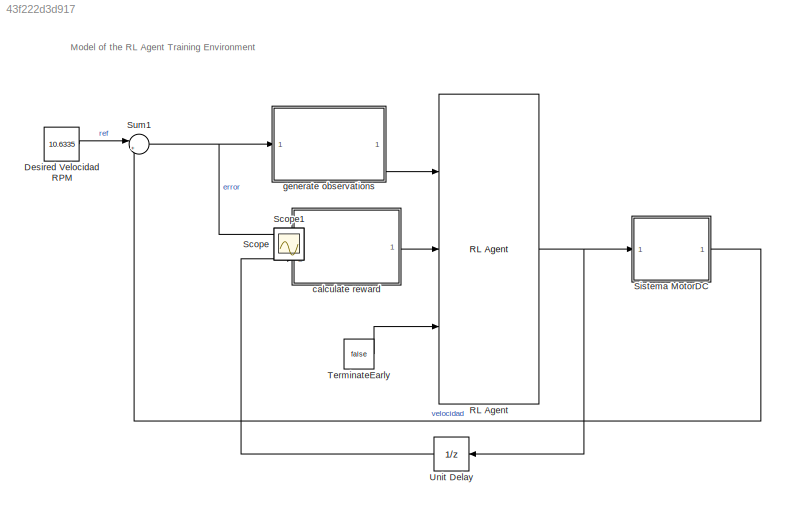
MODEL slx_43f222d3d917
KIND model
CONFIG AbsTol = auto
CONFIG EnableMultiTasking = on
CONFIG FixedStep = auto
CONFIG MaxStep = auto
CONFIG MinStep = auto
CONFIG RelTol = 1e-3
CONFIG SampleTimeConstraint = Unconstrained
CONFIG SolverName = ode45
CONFIG StartTime = 0.0
CONFIG StopTime = 200
BLOCK [Constant] Desired Velocidad RPM
  Value = 10.6335
BLOCK [Reference] RL Agent  REF=rllib/RL Agent
  Ports = [3, 1]
  SourceBlock = rllib/RL Agent
  SourceProductBaseCode = RL
  SourceType = RL Agent
BLOCK [Scope] Scope
  Floating = off
  IOType = viewer
  NumInputPorts = 1
  Ports = []
  ScopeSpecificationString = Simulink.scopes.TimeScopeBlockCfg('CurrentConfiguration', extmgr.ConfigurationSet(extmgr.Configuration('Core','General UI',true),extmgr.Configuration('Core','Source UI',true),extmgr.Configuration('Sources','WiredSimulink',true),extmgr.Configuration('Visuals','Time Domain',true,'SerializedDisplays',{struct('MinYLimReal','-3.09838','MaxYLimReal','27.8854','YLabelReal','','MinYLimMag','0.00000','MaxY...<+1402ch>
BLOCK [Scope] Scope1
  Floating = off
  IOType = viewer
  NumInputPorts = 1
  Ports = []
  ScopeSpecificationString = Simulink.scopes.TimeScopeBlockCfg('CurrentConfiguration', extmgr.ConfigurationSet(extmgr.Configuration('Core','General UI',true),extmgr.Configuration('Core','Source UI',true),extmgr.Configuration('Sources','WiredSimulink',true,'DataLoggingVariableName','ScopeData1'),extmgr.Configuration('Visuals','Time Domain',true,'SerializedDisplays',{struct('MinYLimReal','-10.00000','MaxYLimReal','10.00000','YL...<+1365ch>
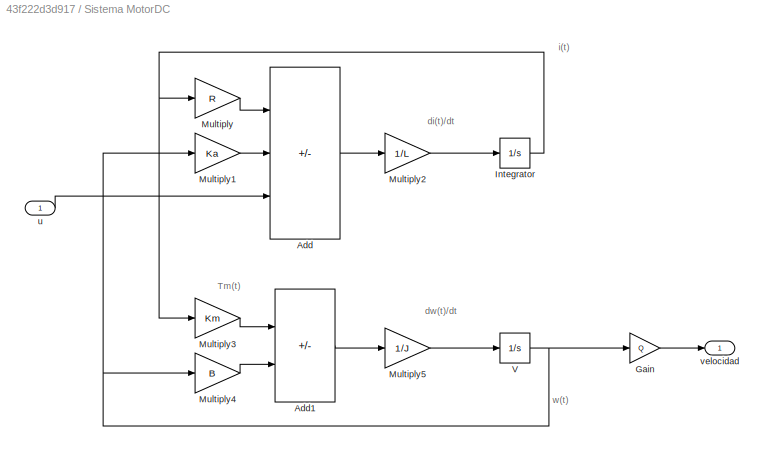
BLOCK [SubSystem] Sistema MotorDC
  Ports = [1, 1]
  RequestExecContextInheritance = off
BLOCK [Sum] Sistema MotorDC/Add
  IconShape = rectangular
  Inputs = --+
  Ports = [3, 1]
BLOCK [Sum] Sistema MotorDC/Add1
  IconShape = rectangular
  Inputs = +-
  Ports = [2, 1]
BLOCK [Gain] Sistema MotorDC/Gain
  Gain = Q
BLOCK [Integrator] Sistema MotorDC/Integrator
  Ports = [1, 1]
BLOCK [Gain] Sistema MotorDC/Multiply
  Gain = R
BLOCK [Gain] Sistema MotorDC/Multiply1
  Gain = Ka
BLOCK [Gain] Sistema MotorDC/Multiply2
  Gain = 1/L
BLOCK [Gain] Sistema MotorDC/Multiply3
  Gain = Km
BLOCK [Gain] Sistema MotorDC/Multiply4
  Gain = B
BLOCK [Gain] Sistema MotorDC/Multiply5
  Gain = 1/J
BLOCK [Integrator] Sistema MotorDC/V
  LimitOutput = on
  LowerSaturationLimit = 0
  Ports = [1, 1]
BLOCK [Inport] Sistema MotorDC/u
BLOCK [Outport] Sistema MotorDC/velocidad
  VectorParamsAs1DForOutWhenUnconnected = off
BLOCK [Sum] Sum1
  Inputs = |+-
  Ports = [2, 1]
  SaturateOnIntegerOverflow = on
BLOCK [Constant] TerminateEarly
  Value = false
BLOCK [UnitDelay] Unit Delay
  HasFrameUpgradeWarning = on
  NameLocation = top
  SampleTime = -1
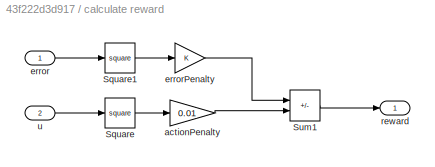
BLOCK [SubSystem] calculate reward
  Ports = [2, 1]
  RequestExecContextInheritance = off
BLOCK [Math] calculate reward/Square
  Operator = square
  Ports = [1, 1]
BLOCK [Math] calculate reward/Square1
  Operator = square
  Ports = [1, 1]
BLOCK [Sum] calculate reward/Sum1
  IconShape = rectangular
  Inputs = --
  OutDataTypeStr = double
  Ports = [2, 1]
BLOCK [Gain] calculate reward/actionPenalty
  Gain = 0.01
BLOCK [Inport] calculate reward/error
BLOCK [Gain] calculate reward/errorPenalty
BLOCK [Outport] calculate reward/reward
  VectorParamsAs1DForOutWhenUnconnected = off
BLOCK [Inport] calculate reward/u
  Port = 2
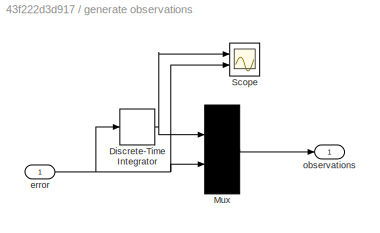
BLOCK [SubSystem] generate observations
  Ports = [1, 1]
  RequestExecContextInheritance = off
BLOCK [DiscreteIntegrator] generate observations/Discrete-Time Integrator
  ICPrevOutput = DiscIntNeverNeededParam
  ICPrevScaledInput = DiscIntNeverNeededParam
  InitialConditionSetting = Auto
  Ports = [1, 1]
  SampleTime = Ts
BLOCK [Mux] generate observations/Mux
  DisplayOption = bar
  Inputs = 2
  Ports = [2, 1]
BLOCK [Scope] generate observations/Scope
  Floating = off
  NumInputPorts = 2
  Ports = [2]
  ScopeSpecificationString = Simulink.scopes.TimeScopeBlockCfg('CurrentConfiguration', extmgr.ConfigurationSet(extmgr.Configuration('Core','General UI',true),extmgr.Configuration('Core','Source UI',true),extmgr.Configuration('Sources','WiredSimulink',true,'DataLoggingVariableName','ScopeData2'),extmgr.Configuration('Visuals','Time Domain',true,'SerializedDisplays',{struct('MinYLimReal','-2.63404','MaxYLimReal','11.10792','YLa...<+1423ch>
BLOCK [Inport] generate observations/error
BLOCK [Outport] generate observations/observations
  VectorParamsAs1DForOutWhenUnconnected = off
ANNOTATION (root): Model of the RL Agent Training Environment
ANNOTATION Sistema MotorDC: Tm(t)
ANNOTATION Sistema MotorDC: di(t)/dt
ANNOTATION Sistema MotorDC: dw(t)/dt
ANNOTATION Sistema MotorDC: i(t)
ANNOTATION Sistema MotorDC: w(t)
LINE Desired Velocidad RPM:1 -> Sum1:1
NET RL Agent:1 -> Sistema MotorDC:1, Unit Delay:1
LINE Sistema MotorDC/Add1:1 -> Sistema MotorDC/Multiply5:1
LINE Sistema MotorDC/Add:1 -> Sistema MotorDC/Multiply2:1
LINE Sistema MotorDC/Gain:1 -> Sistema MotorDC/velocidad:1
NET Sistema MotorDC/Integrator:1 -> Sistema MotorDC/Multiply3:1, Sistema MotorDC/Multiply:1
LINE Sistema MotorDC/Multiply1:1 -> Sistema MotorDC/Add:2
LINE Sistema MotorDC/Multiply2:1 -> Sistema MotorDC/Integrator:1
LINE Sistema MotorDC/Multiply3:1 -> Sistema MotorDC/Add1:1
LINE Sistema MotorDC/Multiply4:1 -> Sistema MotorDC/Add1:2
LINE Sistema MotorDC/Multiply5:1 -> Sistema MotorDC/V:1
LINE Sistema MotorDC/Multiply:1 -> Sistema MotorDC/Add:1
NET Sistema MotorDC/V:1 -> Sistema MotorDC/Gain:1, Sistema MotorDC/Multiply1:1, Sistema MotorDC/Multiply4:1
LINE Sistema MotorDC/u:1 -> Sistema MotorDC/Add:3
LINE Sistema MotorDC:1 -> Sum1:2
NET Sum1:1 -> calculate reward:1, generate observations:1
LINE TerminateEarly:1 -> RL Agent:3
LINE Unit Delay:1 -> calculate reward:2
LINE calculate reward/Square1:1 -> calculate reward/errorPenalty:1
LINE calculate reward/Square:1 -> calculate reward/actionPenalty:1
LINE calculate reward/Sum1:1 -> calculate reward/reward:1
LINE calculate reward/actionPenalty:1 -> calculate reward/Sum1:2
LINE calculate reward/error:1 -> calculate reward/Square1:1
LINE calculate reward/errorPenalty:1 -> calculate reward/Sum1:1
LINE calculate reward/u:1 -> calculate reward/Square:1
LINE calculate reward:1 -> RL Agent:2
NET generate observations/Discrete-Time Integrator:1 -> generate observations/Mux:1, generate observations/Scope:1
LINE generate observations/Mux:1 -> generate observations/observations:1
NET generate observations/error:1 -> generate observations/Discrete-Time Integrator:1, generate observations/Mux:2, generate observations/Scope:2
LINE generate observations:1 -> RL Agent:1
note: NET lines group one-source signal fan-out (src -> all destinations, sorted); 1:1 wires keep LINE
